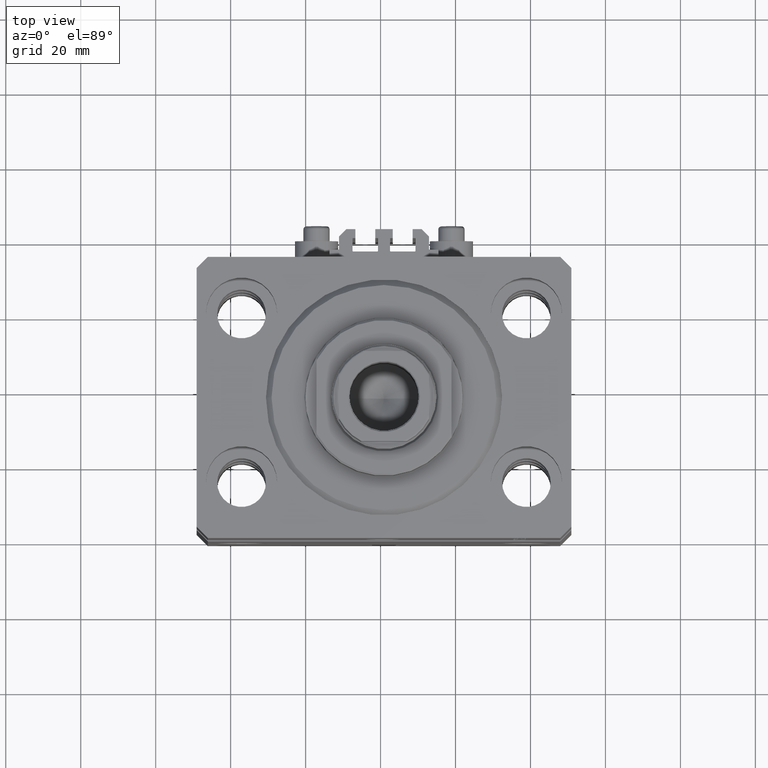
[diagram: clean part render]
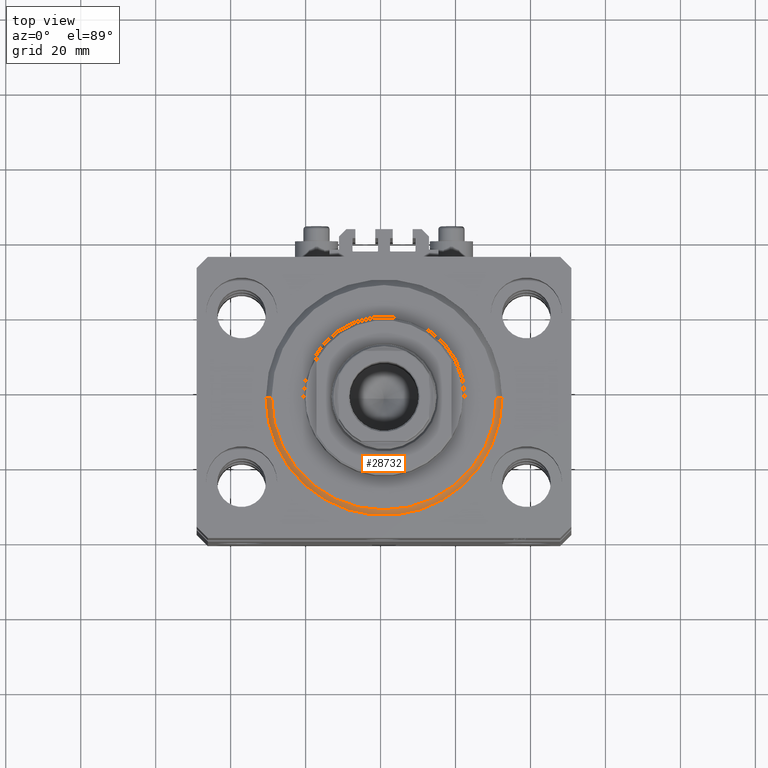
[diagram: same view with one face highlighted and labeled with its STEP entity id]
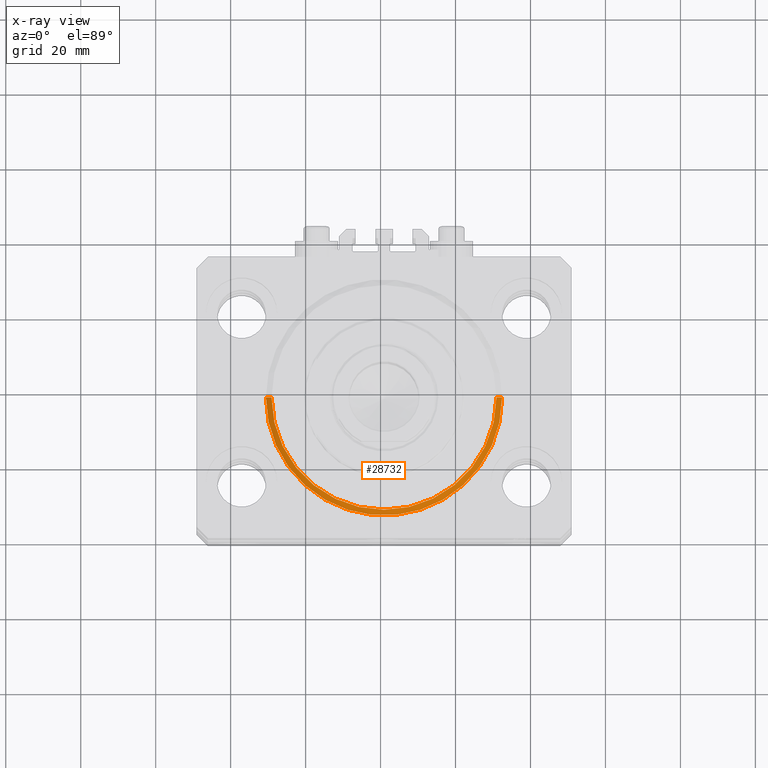
[diagram: x-ray of the same camera — body ghosted, the highlighted face saturated]
A machine part, top view. The second image highlights one B-rep face of the part: STEP entity #28732.
The next image is the same camera in x-ray: the body ghosted, the highlighted face saturated — about 0% of this face is hidden behind the body in this view.
In plain terms, the highlighted conical surface has half-angle 45 deg.
Its self-contained STEP definition (entity closure, byte-faithful):
#1673 = LINE ( 'NONE', #10164, #36272 ) ;
#4283 = AXIS2_PLACEMENT_3D ( 'NONE', #7327, #18530, #33408 ) ;
#4685 = VERTEX_POINT ( 'NONE', #11588 ) ;
#5793 = DIRECTION ( 'NONE',  ( 1.000000000000000000, 0.000000000000000000, 0.000000000000000000 ) ) ;
#7327 = CARTESIAN_POINT ( 'NONE',  ( 0.000000000000000000, 0.000000000000000000, 0.000000000000000000 ) ) ;
#8489 = CARTESIAN_POINT ( 'NONE',  ( 0.000000000000000000, 0.000000000000000000, 1.500000000000001332 ) ) ;
#8691 = EDGE_CURVE ( 'NONE', #27350, #27755, #14404, .T. ) ;
#9444 = CARTESIAN_POINT ( 'NONE',  ( 29.99999999999999289, 0.000000000000000000, 0.000000000000000000 ) ) ;
#10164 = CARTESIAN_POINT ( 'NONE',  ( 31.50000000000000000, 0.000000000000000000, 1.500000000000001332 ) ) ;
#11588 = CARTESIAN_POINT ( 'NONE',  ( -31.50000000000000000, 0.000000000000000000, 1.500000000000001332 ) ) ;
#11913 = FACE_OUTER_BOUND ( 'NONE', #31867, .T. ) ;
#13001 = VERTEX_POINT ( 'NONE', #34324 ) ;
#13895 = EDGE_CURVE ( 'NONE', #27350, #13001, #1673, .T. ) ;
#14404 = CIRCLE ( 'NONE', #4283, 29.99999999999999289 ) ;
#15222 = EDGE_CURVE ( 'NONE', #4685, #13001, #20722, .T. ) ;
#15445 = CARTESIAN_POINT ( 'NONE',  ( -29.99999999999999289, 3.765788907378110539E-15, 0.000000000000000000 ) ) ;
#17325 = EDGE_CURVE ( 'NONE', #27755, #4685, #22892, .T. ) ;
#18530 = DIRECTION ( 'NONE',  ( -0.000000000000000000, -0.000000000000000000, -1.000000000000000000 ) ) ;
#20606 = CARTESIAN_POINT ( 'NONE',  ( 0.000000000000000000, 0.000000000000000000, 1.500000000000001332 ) ) ;
#20722 = CIRCLE ( 'NONE', #47970, 31.50000000000000000 ) ;
#22892 = LINE ( 'NONE', #26560, #47250 ) ;
#23360 = DIRECTION ( 'NONE',  ( -0.000000000000000000, -0.000000000000000000, 1.000000000000000000 ) ) ;
#26363 = ORIENTED_EDGE ( 'NONE', *, *, #17325, .F. ) ;
#26560 = CARTESIAN_POINT ( 'NONE',  ( -31.50000000000000000, 3.857637417314162689E-15, 1.500000000000001332 ) ) ;
#26796 = DIRECTION ( 'NONE',  ( 1.000000000000000000, 0.000000000000000000, 0.000000000000000000 ) ) ;
#27350 = VERTEX_POINT ( 'NONE', #9444 ) ;
#27755 = VERTEX_POINT ( 'NONE', #15445 ) ;
#28732 = ADVANCED_FACE ( 'NONE', ( #11913 ), #36792, .T. ) ;
#30444 = DIRECTION ( 'NONE',  ( -0.7071067811865491270, 8.659560562354952580E-17, 0.7071067811865459074 ) ) ;
#31867 = EDGE_LOOP ( 'NONE', ( #26363, #44864, #37336, #47641 ) ) ;
#33408 = DIRECTION ( 'NONE',  ( 1.000000000000000000, 0.000000000000000000, 0.000000000000000000 ) ) ;
#34324 = CARTESIAN_POINT ( 'NONE',  ( 31.50000000000000000, 3.857637417314162689E-15, 1.500000000000001332 ) ) ;
#36272 = VECTOR ( 'NONE', #39921, 1000.000000000000000 ) ;
#36792 = CONICAL_SURFACE ( 'NONE', #39896, 31.50000000000000000, 0.7853981633974506105 ) ;
#37336 = ORIENTED_EDGE ( 'NONE', *, *, #13895, .T. ) ;
#39896 = AXIS2_PLACEMENT_3D ( 'NONE', #20606, #42143, #26796 ) ;
#39921 = DIRECTION ( 'NONE',  ( 0.7071067811865491270, 0.000000000000000000, 0.7071067811865459074 ) ) ;
#42143 = DIRECTION ( 'NONE',  ( -0.000000000000000000, -0.000000000000000000, 1.000000000000000000 ) ) ;
#44864 = ORIENTED_EDGE ( 'NONE', *, *, #8691, .F. ) ;
#47250 = VECTOR ( 'NONE', #30444, 1000.000000000000000 ) ;
#47641 = ORIENTED_EDGE ( 'NONE', *, *, #15222, .F. ) ;
#47970 = AXIS2_PLACEMENT_3D ( 'NONE', #8489, #23360, #5793 ) ;